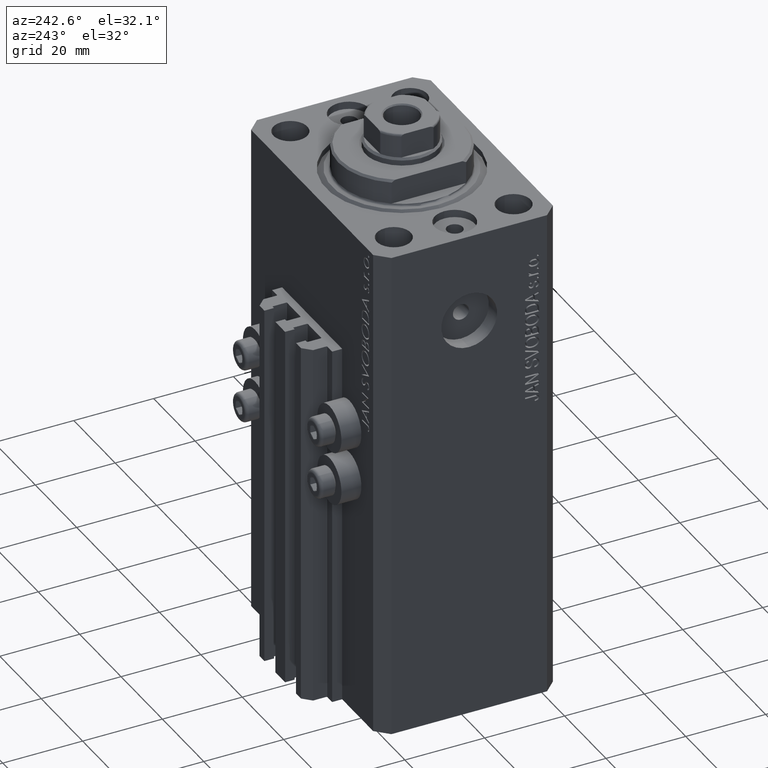
[diagram: clean part render]
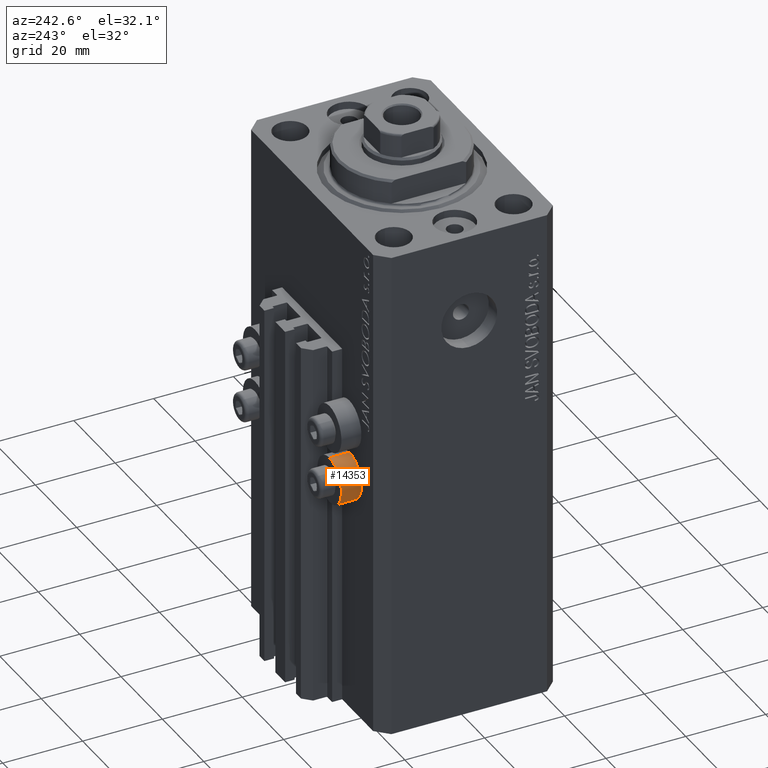
[diagram: same view with one face highlighted and labeled with its STEP entity id]
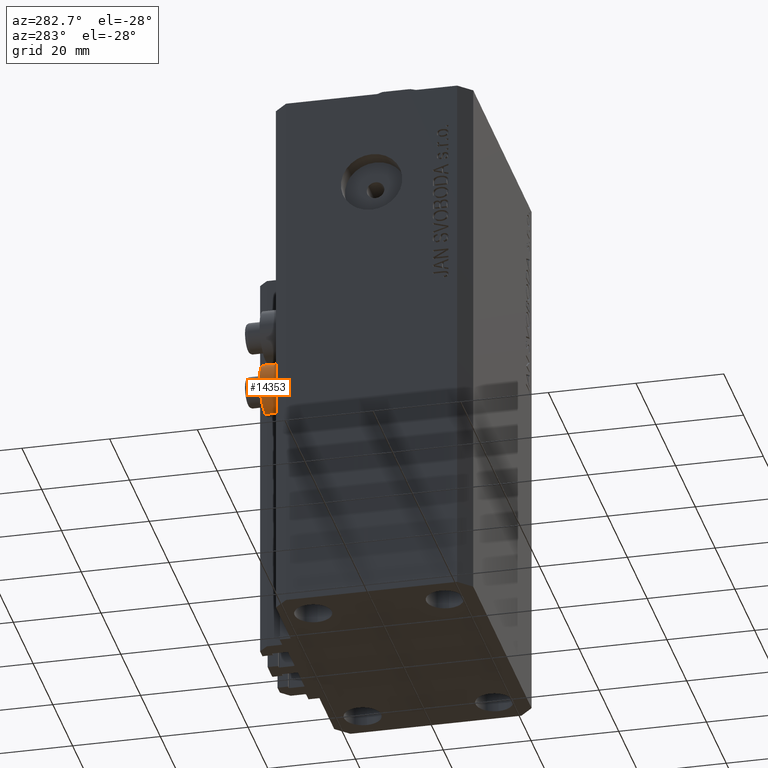
[diagram: same view with one face highlighted and labeled with its STEP entity id]
A machine part, auxiliary view. The second image highlights one B-rep face of the part: STEP entity #14353.
A second angle (auxiliary view) of the same face is appended — the face is thin or edge-on in the first view.
In plain terms, the highlighted cylindrical surface (edge-blend (fillet) strip) has radius 5.8 mm, axis along (0, 1, 0).
Its self-contained STEP definition (entity closure, byte-faithful):
#43 = LINE ( 'NONE', #32300, #28966 ) ;
#5475 = AXIS2_PLACEMENT_3D ( 'NONE', #42679, #6628, #24316 ) ;
#6495 = DIRECTION ( 'NONE',  ( 0.000000000000000000, 1.000000000000000000, 0.000000000000000000 ) ) ;
#6628 = DIRECTION ( 'NONE',  ( -0.000000000000000000, -1.000000000000000000, -0.000000000000000000 ) ) ;
#7837 = DIRECTION ( 'NONE',  ( 0.000000000000000000, 1.000000000000000000, 0.000000000000000000 ) ) ;
#9064 = EDGE_CURVE ( 'NONE', #41155, #35561, #43, .T. ) ;
#10141 = VERTEX_POINT ( 'NONE', #23910 ) ;
#11342 = VERTEX_POINT ( 'NONE', #13443 ) ;
#11560 = CIRCLE ( 'NONE', #5475, 5.799999999999999822 ) ;
#12153 = CIRCLE ( 'NONE', #35815, 5.799999999999999822 ) ;
#12738 = EDGE_LOOP ( 'NONE', ( #36067, #36228, #44147, #24310 ) ) ;
#13443 = CARTESIAN_POINT ( 'NONE',  ( -18.00000000000000355, 22.49999999999951328, -69.79999999999999716 ) ) ;
#14353 = ADVANCED_FACE ( 'NONE', ( #33364 ), #15004, .T. ) ;
#15004 = CYLINDRICAL_SURFACE ( 'NONE', #40579, 5.799999999999999822 ) ;
#17230 = EDGE_CURVE ( 'NONE', #35561, #10141, #11560, .T. ) ;
#18358 = CARTESIAN_POINT ( 'NONE',  ( -18.00000000000000355, 27.49999999996051514, -64.00000000000000000 ) ) ;
#23910 = CARTESIAN_POINT ( 'NONE',  ( -18.00000000000000355, 27.49999999996051514, -69.79999999999999716 ) ) ;
#24310 = ORIENTED_EDGE ( 'NONE', *, *, #35785, .F. ) ;
#24316 = DIRECTION ( 'NONE',  ( 0.000000000000000000, 0.000000000000000000, -1.000000000000000000 ) ) ;
#24654 = CARTESIAN_POINT ( 'NONE',  ( -18.00000000000000355, 27.49999999996051514, -69.79999999999999716 ) ) ;
#26934 = CARTESIAN_POINT ( 'NONE',  ( -18.00000000000000355, 22.49999999999951328, -64.00000000000000000 ) ) ;
#28966 = VECTOR ( 'NONE', #32752, 1000.000000000000000 ) ;
#30039 = DIRECTION ( 'NONE',  ( 0.000000000000000000, 0.000000000000000000, -1.000000000000000000 ) ) ;
#31761 = CARTESIAN_POINT ( 'NONE',  ( -18.00000000000000355, 27.49999999996051514, -58.20000000000000284 ) ) ;
#32300 = CARTESIAN_POINT ( 'NONE',  ( -18.00000000000000355, 27.49999999996051514, -58.20000000000000284 ) ) ;
#32752 = DIRECTION ( 'NONE',  ( 0.000000000000000000, 1.000000000000000000, 0.000000000000000000 ) ) ;
#33364 = FACE_OUTER_BOUND ( 'NONE', #12738, .T. ) ;
#35134 = CARTESIAN_POINT ( 'NONE',  ( -18.00000000000000355, 22.49999999999951328, -58.20000000000000284 ) ) ;
#35561 = VERTEX_POINT ( 'NONE', #31761 ) ;
#35785 = EDGE_CURVE ( 'NONE', #11342, #10141, #45898, .T. ) ;
#35815 = AXIS2_PLACEMENT_3D ( 'NONE', #26934, #37904, #46013 ) ;
#36067 = ORIENTED_EDGE ( 'NONE', *, *, #39847, .F. ) ;
#36228 = ORIENTED_EDGE ( 'NONE', *, *, #9064, .T. ) ;
#37904 = DIRECTION ( 'NONE',  ( -0.000000000000000000, -1.000000000000000000, -0.000000000000000000 ) ) ;
#39847 = EDGE_CURVE ( 'NONE', #41155, #11342, #12153, .T. ) ;
#40579 = AXIS2_PLACEMENT_3D ( 'NONE', #18358, #7837, #30039 ) ;
#41155 = VERTEX_POINT ( 'NONE', #35134 ) ;
#42679 = CARTESIAN_POINT ( 'NONE',  ( -18.00000000000000355, 27.49999999996051514, -64.00000000000000000 ) ) ;
#44147 = ORIENTED_EDGE ( 'NONE', *, *, #17230, .T. ) ;
#45691 = VECTOR ( 'NONE', #6495, 1000.000000000000000 ) ;
#45898 = LINE ( 'NONE', #24654, #45691 ) ;
#46013 = DIRECTION ( 'NONE',  ( 0.000000000000000000, 0.000000000000000000, -1.000000000000000000 ) ) ;